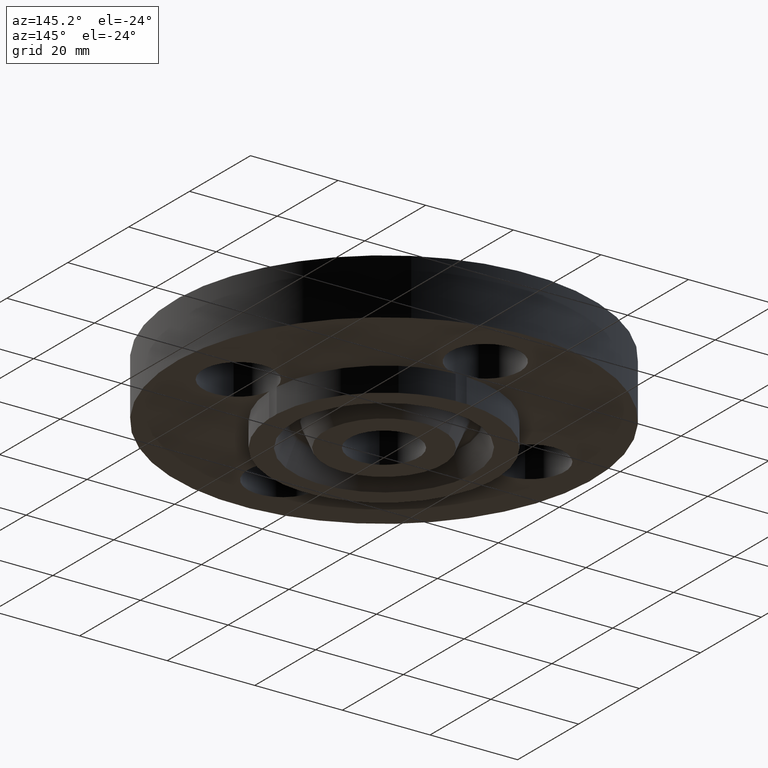
[diagram: clean part render]
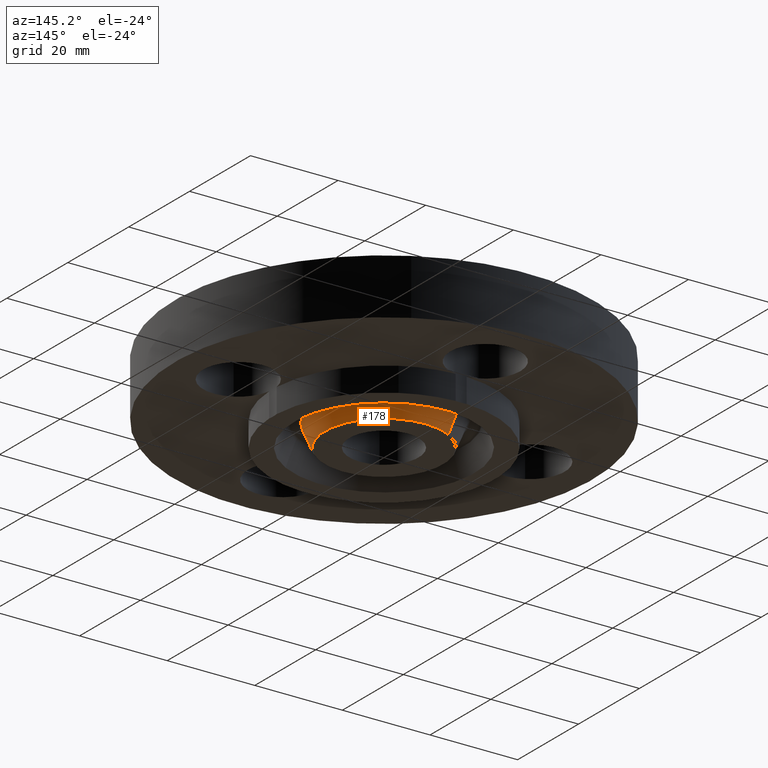
[diagram: same view with one face highlighted and labeled with its STEP entity id]
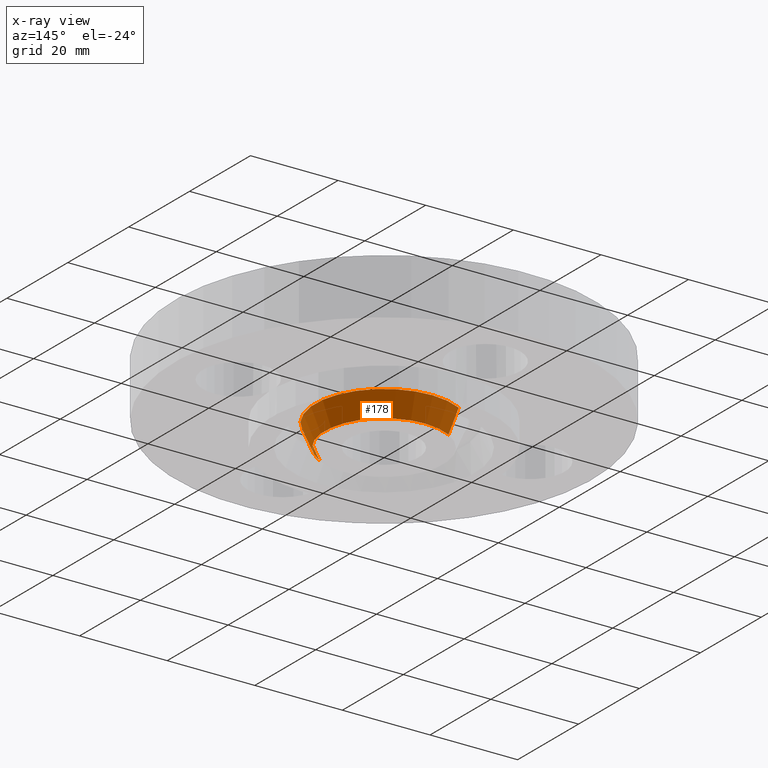
[diagram: x-ray of the same camera — body ghosted, the highlighted face saturated]
A machine part, auxiliary view. The second image highlights one B-rep face of the part: STEP entity #178.
The next image is the same camera in x-ray: the body ghosted, the highlighted face saturated — about 0% of this face is hidden behind the body in this view.
In plain terms, the highlighted conical surface has half-angle 23 deg.
Its self-contained STEP definition (entity closure, byte-faithful):
#127=AXIS2_PLACEMENT_3D('Circle Axis2P3D',#125,#126,$) ;
#151=AXIS2_PLACEMENT_3D('Cone Axis2P3D',#148,#149,#150) ;
#162=AXIS2_PLACEMENT_3D('Circle Axis2P3D',#160,#161,$) ;
#125=CARTESIAN_POINT('Axis2P3D Location',(6.99353086378E-017,-3.49676543189E-017,-0.219000000001)) ;
#129=CARTESIAN_POINT('Vertex',(-0.254814673769,0.466435131647,-0.219000000001)) ;
#131=CARTESIAN_POINT('Vertex',(0.254814673769,-0.466435131647,-0.219000000001)) ;
#148=CARTESIAN_POINT('Axis2P3D Location',(0.,0.,-0.279000000001)) ;
#153=CARTESIAN_POINT('Line Origine',(-0.275176544399,0.503707285825,-0.118943667509)) ;
#157=CARTESIAN_POINT('Vertex',(-0.295538415029,0.540979440004,-0.0188873350169)) ;
#160=CARTESIAN_POINT('Axis2P3D Location',(0.,0.,-0.0188873350169)) ;
#164=CARTESIAN_POINT('Vertex',(0.295538415029,-0.540979440004,-0.0188873350169)) ;
#167=CARTESIAN_POINT('Line Origine',(0.275176544399,-0.503707285825,-0.118943667509)) ;
#126=DIRECTION('Axis2P3D Direction',(0.,0.,-0.0393700787402)) ;
#149=DIRECTION('Axis2P3D Direction',(0.,0.,0.0393700787402)) ;
#150=DIRECTION('Axis2P3D XDirection',(-0.0188750212049,0.0345504945626,0.)) ;
#154=DIRECTION('Vector Direction',(-0.00737505833565,0.0134999537303,0.0362403485611)) ;
#161=DIRECTION('Axis2P3D Direction',(0.,0.,0.0393700787402)) ;
#168=DIRECTION('Vector Direction',(0.00737505833565,-0.0134999537303,0.0362403485611)) ;
#155=VECTOR('Line Direction',#154,0.0393700787402) ;
#169=VECTOR('Line Direction',#168,0.0393700787402) ;
#173=ORIENTED_EDGE('',*,*,#159,.F.) ;
#174=ORIENTED_EDGE('',*,*,#166,.F.) ;
#175=ORIENTED_EDGE('',*,*,#171,.T.) ;
#176=ORIENTED_EDGE('',*,*,#133,.F.) ;
#178=ADVANCED_FACE('PartBody',(#177),#152,.T.) ;
#128=CIRCLE('generated circle',#127,0.531500000002) ;
#163=CIRCLE('generated circle',#162,0.616442786692) ;
#152=CONICAL_SURFACE('Cone',#151,0.506031511029,0.401425727959) ;
#133=EDGE_CURVE('',#130,#132,#128,.T.) ;
#159=EDGE_CURVE('',#158,#130,#156,.F.) ;
#166=EDGE_CURVE('',#165,#158,#163,.T.) ;
#171=EDGE_CURVE('',#165,#132,#170,.F.) ;
#172=EDGE_LOOP('',(#173,#174,#175,#176)) ;
#177=FACE_OUTER_BOUND('',#172,.T.) ;
#156=LINE('Line',#153,#155) ;
#170=LINE('Line',#167,#169) ;
#130=VERTEX_POINT('',#129) ;
#132=VERTEX_POINT('',#131) ;
#158=VERTEX_POINT('',#157) ;
#165=VERTEX_POINT('',#164) ;